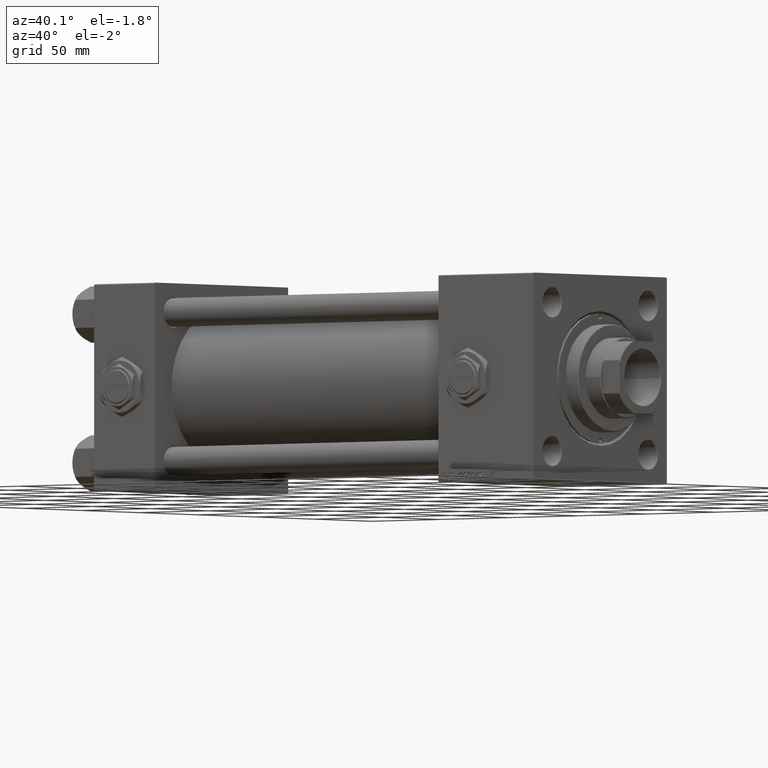
[diagram: clean part render]
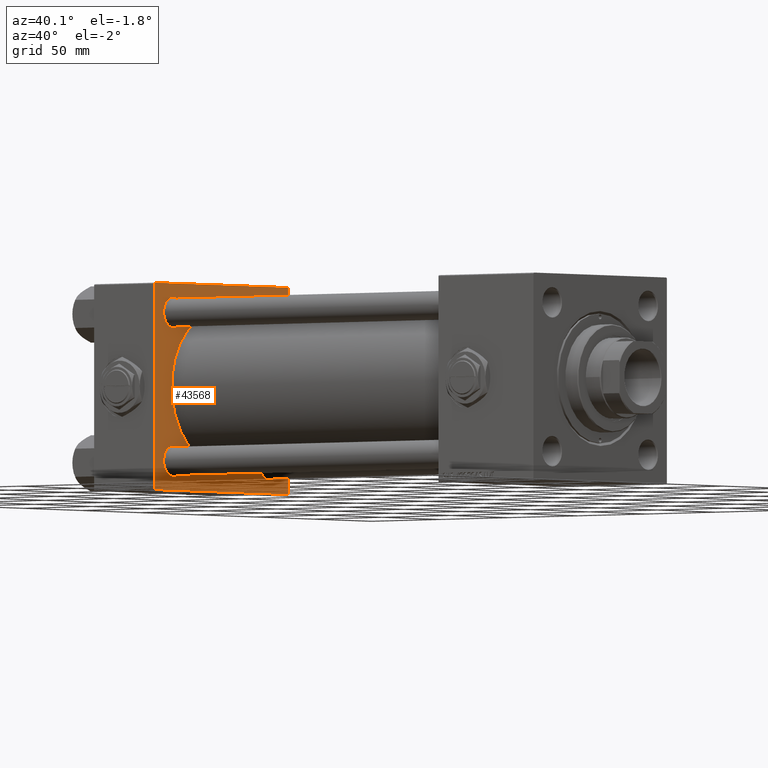
[diagram: same view with one face highlighted and labeled with its STEP entity id]
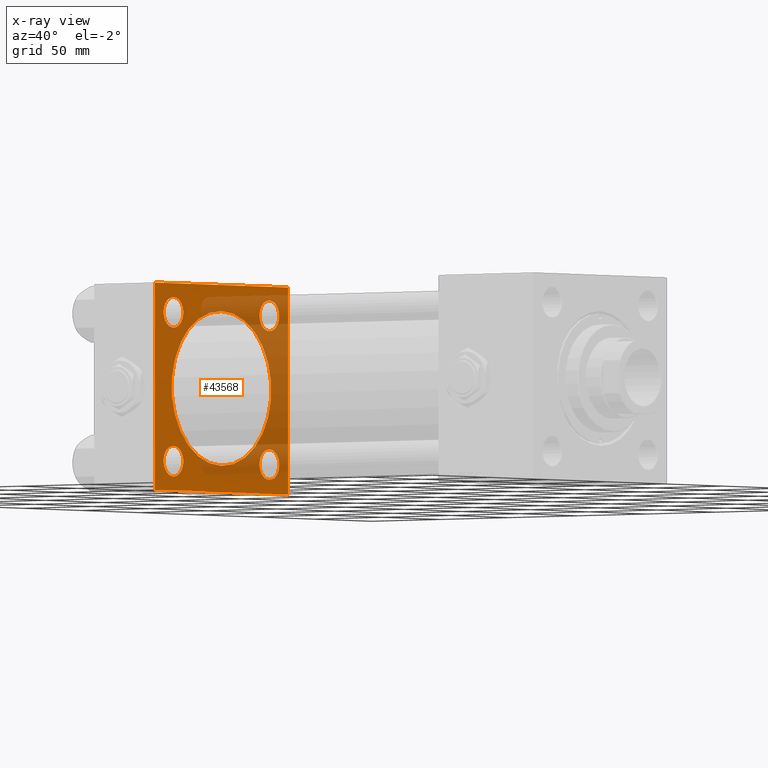
[diagram: x-ray of the same camera — body ghosted, the highlighted face saturated]
A machine part, auxiliary view. The second image highlights one B-rep face of the part: STEP entity #43568.
The next image is the same camera in x-ray: the body ghosted, the highlighted face saturated — about 40% of this face is hidden behind the body in this view.
In plain terms, the highlighted planar face has unit normal (-1, 0, 0).
Its self-contained STEP definition (entity closure, byte-faithful):
#1026 = CARTESIAN_POINT ( 'NONE',  ( 44.00000000000000000, -57.00000000000000711, -57.50000000000000711 ) ) ;
#1471 = DIRECTION ( 'NONE',  ( -1.000000000000000000, 0.000000000000000000, -0.000000000000000000 ) ) ;
#1589 = ORIENTED_EDGE ( 'NONE', *, *, #9591, .T. ) ;
#1885 = VECTOR ( 'NONE', #52728, 1000.000000000000114 ) ;
#1902 = EDGE_LOOP ( 'NONE', ( #37003, #5543 ) ) ;
#2224 = DIRECTION ( 'NONE',  ( -1.000000000000000000, 0.000000000000000000, -0.000000000000000000 ) ) ;
#2339 = CARTESIAN_POINT ( 'NONE',  ( 44.00000000000000000, 41.34999999999999432, -32.85000000000007958 ) ) ;
#2389 = LINE ( 'NONE', #18143, #19058 ) ;
#2866 = DIRECTION ( 'NONE',  ( 0.000000000000000000, 0.000000000000000000, 1.000000000000000000 ) ) ;
#3033 = EDGE_CURVE ( 'NONE', #34086, #39657, #11887, .T. ) ;
#3159 = FACE_BOUND ( 'NONE', #1902, .T. ) ;
#3241 = CARTESIAN_POINT ( 'NONE',  ( 44.00000000000000000, -41.34999999999998721, 41.35000000000000853 ) ) ;
#3274 = DIRECTION ( 'NONE',  ( 0.000000000000000000, 0.000000000000000000, 1.000000000000000000 ) ) ;
#3493 = EDGE_LOOP ( 'NONE', ( #8577, #50365 ) ) ;
#3628 = VERTEX_POINT ( 'NONE', #39375 ) ;
#3772 = CARTESIAN_POINT ( 'NONE',  ( 44.00000000000000000, 41.34999999999999432, 32.85000000000007958 ) ) ;
#4202 = FACE_BOUND ( 'NONE', #15897, .T. ) ;
#4848 = VERTEX_POINT ( 'NONE', #1026 ) ;
#5009 = ORIENTED_EDGE ( 'NONE', *, *, #47600, .T. ) ;
#5543 = ORIENTED_EDGE ( 'NONE', *, *, #23218, .T. ) ;
#6399 = AXIS2_PLACEMENT_3D ( 'NONE', #26458, #22197, #18447 ) ;
#7429 = FACE_BOUND ( 'NONE', #20040, .T. ) ;
#8209 = DIRECTION ( 'NONE',  ( -0.000000000000000000, 0.000000000000000000, 1.000000000000000000 ) ) ;
#8255 = CIRCLE ( 'NONE', #16787, 43.00000000000000000 ) ;
#8360 = VERTEX_POINT ( 'NONE', #50004 ) ;
#8577 = ORIENTED_EDGE ( 'NONE', *, *, #3033, .T. ) ;
#9138 = CARTESIAN_POINT ( 'NONE',  ( 44.00000000000000000, -57.50000000000000711, 57.00000000000000711 ) ) ;
#9591 = EDGE_CURVE ( 'NONE', #17645, #19429, #16385, .T. ) ;
#9860 = LINE ( 'NONE', #17618, #13540 ) ;
#9997 = CIRCLE ( 'NONE', #41552, 8.499999999999923617 ) ;
#10466 = CARTESIAN_POINT ( 'NONE',  ( 44.00000000000000000, -41.34999999999998721, -49.84999999999993747 ) ) ;
#11887 = CIRCLE ( 'NONE', #41726, 8.499999999999923617 ) ;
#12102 = VERTEX_POINT ( 'NONE', #15711 ) ;
#12589 = DIRECTION ( 'NONE',  ( 0.000000000000000000, 0.000000000000000000, 1.000000000000000000 ) ) ;
#12631 = CARTESIAN_POINT ( 'NONE',  ( 44.00000000000000000, -41.34999999999998721, 49.84999999999993747 ) ) ;
#12901 = DIRECTION ( 'NONE',  ( 0.000000000000000000, 0.000000000000000000, -1.000000000000000000 ) ) ;
#13050 = VERTEX_POINT ( 'NONE', #17036 ) ;
#13354 = CARTESIAN_POINT ( 'NONE',  ( 44.00000000000000000, 57.00000000000000711, 57.50000000000000711 ) ) ;
#13417 = EDGE_CURVE ( 'NONE', #26379, #23158, #44506, .T. ) ;
#13525 = EDGE_CURVE ( 'NONE', #12102, #13050, #19606, .T. ) ;
#13540 = VECTOR ( 'NONE', #13855, 1000.000000000000000 ) ;
#13729 = EDGE_LOOP ( 'NONE', ( #16298, #44739, #14153, #49296, #50276, #5009, #48156, #33855 ) ) ;
#13855 = DIRECTION ( 'NONE',  ( 0.000000000000000000, 0.000000000000000000, -1.000000000000000000 ) ) ;
#14042 = CIRCLE ( 'NONE', #6399, 8.499999999999923617 ) ;
#14153 = ORIENTED_EDGE ( 'NONE', *, *, #35117, .F. ) ;
#14279 = DIRECTION ( 'NONE',  ( 0.000000000000000000, 0.000000000000000000, 1.000000000000000000 ) ) ;
#15242 = VECTOR ( 'NONE', #41385, 1000.000000000000114 ) ;
#15692 = CARTESIAN_POINT ( 'NONE',  ( 44.00000000000000000, 0.000000000000000000, 0.000000000000000000 ) ) ;
#15711 = CARTESIAN_POINT ( 'NONE',  ( 44.00000000000000000, 57.00000000000002132, -57.49999999999999289 ) ) ;
#15897 = EDGE_LOOP ( 'NONE', ( #44394, #1589 ) ) ;
#16298 = ORIENTED_EDGE ( 'NONE', *, *, #16782, .F. ) ;
#16385 = CIRCLE ( 'NONE', #26627, 8.499999999999923617 ) ;
#16782 = EDGE_CURVE ( 'NONE', #12102, #4848, #2389, .T. ) ;
#16787 = AXIS2_PLACEMENT_3D ( 'NONE', #31171, #47473, #2866 ) ;
#16909 = DIRECTION ( 'NONE',  ( -1.000000000000000000, 0.000000000000000000, -0.000000000000000000 ) ) ;
#17036 = CARTESIAN_POINT ( 'NONE',  ( 44.00000000000000000, 57.49999999999999289, -57.00000000000000711 ) ) ;
#17618 = CARTESIAN_POINT ( 'NONE',  ( 44.00000000000000000, -57.50000000000000711, 57.49999999999999289 ) ) ;
#17645 = VERTEX_POINT ( 'NONE', #2339 ) ;
#17932 = ORIENTED_EDGE ( 'NONE', *, *, #13417, .T. ) ;
#18057 = CARTESIAN_POINT ( 'NONE',  ( 44.00000000000000000, -57.50000000000000711, 57.00000000000000711 ) ) ;
#18143 = CARTESIAN_POINT ( 'NONE',  ( 44.00000000000000000, 57.49999999999999289, -57.49999999999999289 ) ) ;
#18203 = AXIS2_PLACEMENT_3D ( 'NONE', #29445, #16909, #37717 ) ;
#18348 = VERTEX_POINT ( 'NONE', #21143 ) ;
#18425 = CIRCLE ( 'NONE', #43164, 8.499999999999923617 ) ;
#18447 = DIRECTION ( 'NONE',  ( 0.000000000000000000, 0.000000000000000000, 1.000000000000000000 ) ) ;
#19058 = VECTOR ( 'NONE', #26949, 1000.000000000000000 ) ;
#19346 = EDGE_CURVE ( 'NONE', #23158, #26379, #14042, .T. ) ;
#19429 = VERTEX_POINT ( 'NONE', #45120 ) ;
#19442 = DIRECTION ( 'NONE',  ( -1.000000000000000000, 0.000000000000000000, -0.000000000000000000 ) ) ;
#19577 = VECTOR ( 'NONE', #20984, 1000.000000000000000 ) ;
#19606 = LINE ( 'NONE', #31365, #1885 ) ;
#19937 = CARTESIAN_POINT ( 'NONE',  ( 44.00000000000000000, 41.34999999999999432, 49.84999999999993037 ) ) ;
#20040 = EDGE_LOOP ( 'NONE', ( #31347, #33086 ) ) ;
#20075 = DIRECTION ( 'NONE',  ( 0.000000000000000000, 0.000000000000000000, 1.000000000000000000 ) ) ;
#20839 = LINE ( 'NONE', #37112, #15242 ) ;
#20984 = DIRECTION ( 'NONE',  ( 0.000000000000000000, -1.000000000000000000, -1.206764157201257045E-16 ) ) ;
#21143 = CARTESIAN_POINT ( 'NONE',  ( 44.00000000000000000, -57.50000000000000711, -57.00000000000000711 ) ) ;
#21188 = LINE ( 'NONE', #49514, #24874 ) ;
#21517 = DIRECTION ( 'NONE',  ( 0.000000000000000000, 0.000000000000000000, 1.000000000000000000 ) ) ;
#22197 = DIRECTION ( 'NONE',  ( -1.000000000000000000, 0.000000000000000000, -0.000000000000000000 ) ) ;
#22507 = CARTESIAN_POINT ( 'NONE',  ( 44.00000000000000000, 41.34999999999999432, -41.35000000000000142 ) ) ;
#22527 = EDGE_LOOP ( 'NONE', ( #17932, #45988 ) ) ;
#22775 = DIRECTION ( 'NONE',  ( -1.000000000000000000, 0.000000000000000000, -0.000000000000000000 ) ) ;
#23158 = VERTEX_POINT ( 'NONE', #19937 ) ;
#23218 = EDGE_CURVE ( 'NONE', #25961, #3628, #18425, .T. ) ;
#23465 = VECTOR ( 'NONE', #49739, 1000.000000000000114 ) ;
#23531 = DIRECTION ( 'NONE',  ( 0.000000000000000000, 0.000000000000000000, 1.000000000000000000 ) ) ;
#24596 = DIRECTION ( 'NONE',  ( 0.000000000000000000, -0.7071067811865573427, 0.7071067811865376918 ) ) ;
#24867 = DIRECTION ( 'NONE',  ( -1.000000000000000000, 0.000000000000000000, -0.000000000000000000 ) ) ;
#24874 = VECTOR ( 'NONE', #12901, 1000.000000000000000 ) ;
#24990 = CARTESIAN_POINT ( 'NONE',  ( 44.00000000000000000, -57.00000000000003553, 57.49999999999999289 ) ) ;
#25295 = CARTESIAN_POINT ( 'NONE',  ( 43.99999999999998579, -2.602085213965210642E-15, 43.00000000000000000 ) ) ;
#25644 = LINE ( 'NONE', #49171, #51395 ) ;
#25719 = AXIS2_PLACEMENT_3D ( 'NONE', #32869, #31821, #20075 ) ;
#25961 = VERTEX_POINT ( 'NONE', #12631 ) ;
#26379 = VERTEX_POINT ( 'NONE', #3772 ) ;
#26406 = VERTEX_POINT ( 'NONE', #48642 ) ;
#26458 = CARTESIAN_POINT ( 'NONE',  ( 44.00000000000000000, 41.34999999999999432, 41.35000000000000142 ) ) ;
#26627 = AXIS2_PLACEMENT_3D ( 'NONE', #22507, #22775, #3274 ) ;
#26949 = DIRECTION ( 'NONE',  ( 0.000000000000000000, -1.000000000000000000, -1.206764157201257045E-16 ) ) ;
#27064 = CARTESIAN_POINT ( 'NONE',  ( 44.00000000000000000, -41.34999999999998721, -41.35000000000000853 ) ) ;
#27557 = EDGE_CURVE ( 'NONE', #8360, #51569, #8255, .T. ) ;
#27979 = FACE_OUTER_BOUND ( 'NONE', #13729, .T. ) ;
#29445 = CARTESIAN_POINT ( 'NONE',  ( 44.00000000000000000, 41.34999999999999432, -41.35000000000000142 ) ) ;
#30546 = VERTEX_POINT ( 'NONE', #18057 ) ;
#31171 = CARTESIAN_POINT ( 'NONE',  ( 43.99999999999998579, -2.602085213965210642E-15, 0.000000000000000000 ) ) ;
#31347 = ORIENTED_EDGE ( 'NONE', *, *, #35254, .F. ) ;
#31365 = CARTESIAN_POINT ( 'NONE',  ( 44.00000000000000000, 57.49999999999999289, -57.00000000000000711 ) ) ;
#31713 = FACE_BOUND ( 'NONE', #3493, .T. ) ;
#31821 = DIRECTION ( 'NONE',  ( 1.000000000000000000, -0.000000000000000000, 0.000000000000000000 ) ) ;
#31832 = EDGE_CURVE ( 'NONE', #18348, #4848, #20839, .T. ) ;
#31920 = EDGE_CURVE ( 'NONE', #30546, #18348, #9860, .T. ) ;
#32869 = CARTESIAN_POINT ( 'NONE',  ( 43.99999999999998579, -2.602085213965210642E-15, 0.000000000000000000 ) ) ;
#33086 = ORIENTED_EDGE ( 'NONE', *, *, #27557, .F. ) ;
#33422 = LINE ( 'NONE', #9138, #23465 ) ;
#33855 = ORIENTED_EDGE ( 'NONE', *, *, #31832, .T. ) ;
#34086 = VERTEX_POINT ( 'NONE', #10466 ) ;
#34295 = DIRECTION ( 'NONE',  ( -1.000000000000000000, 0.000000000000000000, -0.000000000000000000 ) ) ;
#34381 = VERTEX_POINT ( 'NONE', #13354 ) ;
#34646 = EDGE_CURVE ( 'NONE', #34381, #34750, #40487, .T. ) ;
#34750 = VERTEX_POINT ( 'NONE', #24990 ) ;
#35117 = EDGE_CURVE ( 'NONE', #26406, #13050, #21188, .T. ) ;
#35254 = EDGE_CURVE ( 'NONE', #51569, #8360, #49631, .T. ) ;
#35503 = CARTESIAN_POINT ( 'NONE',  ( 44.00000000000000000, 57.49999999999999289, 57.50000000000000711 ) ) ;
#36290 = AXIS2_PLACEMENT_3D ( 'NONE', #48656, #24867, #12589 ) ;
#37003 = ORIENTED_EDGE ( 'NONE', *, *, #52132, .T. ) ;
#37112 = CARTESIAN_POINT ( 'NONE',  ( 44.00000000000000000, -57.00000000000000711, -57.50000000000000711 ) ) ;
#37258 = CARTESIAN_POINT ( 'NONE',  ( 44.00000000000000000, -41.34999999999998721, 41.35000000000000853 ) ) ;
#37717 = DIRECTION ( 'NONE',  ( 0.000000000000000000, 0.000000000000000000, 1.000000000000000000 ) ) ;
#37981 = EDGE_CURVE ( 'NONE', #26406, #34381, #25644, .T. ) ;
#39375 = CARTESIAN_POINT ( 'NONE',  ( 44.00000000000000000, -41.34999999999998721, 32.85000000000008669 ) ) ;
#39657 = VERTEX_POINT ( 'NONE', #51938 ) ;
#39729 = FACE_BOUND ( 'NONE', #22527, .T. ) ;
#39890 = EDGE_CURVE ( 'NONE', #19429, #17645, #48909, .T. ) ;
#40487 = LINE ( 'NONE', #35503, #19577 ) ;
#40569 = CIRCLE ( 'NONE', #36290, 8.499999999999923617 ) ;
#41385 = DIRECTION ( 'NONE',  ( 0.000000000000000000, 0.7071067811865474617, -0.7071067811865474617 ) ) ;
#41552 = AXIS2_PLACEMENT_3D ( 'NONE', #3241, #44872, #23531 ) ;
#41726 = AXIS2_PLACEMENT_3D ( 'NONE', #27064, #2224, #51383 ) ;
#43164 = AXIS2_PLACEMENT_3D ( 'NONE', #37258, #1471, #21517 ) ;
#43568 = ADVANCED_FACE ( 'NONE', ( #31713, #4202, #3159, #39729, #7429, #27979 ), #48284, .F. ) ;
#44394 = ORIENTED_EDGE ( 'NONE', *, *, #39890, .T. ) ;
#44506 = CIRCLE ( 'NONE', #52236, 8.499999999999923617 ) ;
#44739 = ORIENTED_EDGE ( 'NONE', *, *, #13525, .T. ) ;
#44872 = DIRECTION ( 'NONE',  ( -1.000000000000000000, 0.000000000000000000, -0.000000000000000000 ) ) ;
#45120 = CARTESIAN_POINT ( 'NONE',  ( 44.00000000000000000, 41.34999999999999432, -49.84999999999993037 ) ) ;
#45988 = ORIENTED_EDGE ( 'NONE', *, *, #19346, .T. ) ;
#47473 = DIRECTION ( 'NONE',  ( 1.000000000000000000, -0.000000000000000000, 0.000000000000000000 ) ) ;
#47600 = EDGE_CURVE ( 'NONE', #34750, #30546, #33422, .T. ) ;
#48156 = ORIENTED_EDGE ( 'NONE', *, *, #31920, .T. ) ;
#48284 = PLANE ( 'NONE',  #49823 ) ;
#48478 = EDGE_CURVE ( 'NONE', #39657, #34086, #40569, .T. ) ;
#48642 = CARTESIAN_POINT ( 'NONE',  ( 44.00000000000000000, 57.49999999999999289, 57.00000000000003553 ) ) ;
#48656 = CARTESIAN_POINT ( 'NONE',  ( 44.00000000000000000, -41.34999999999998721, -41.35000000000000853 ) ) ;
#48909 = CIRCLE ( 'NONE', #18203, 8.499999999999923617 ) ;
#49171 = CARTESIAN_POINT ( 'NONE',  ( 44.00000000000000000, 57.00000000000000711, 57.50000000000000711 ) ) ;
#49296 = ORIENTED_EDGE ( 'NONE', *, *, #37981, .T. ) ;
#49514 = CARTESIAN_POINT ( 'NONE',  ( 44.00000000000000000, 57.49999999999999289, 57.50000000000000711 ) ) ;
#49631 = CIRCLE ( 'NONE', #25719, 43.00000000000000000 ) ;
#49739 = DIRECTION ( 'NONE',  ( -0.000000000000000000, -0.7071067811865376918, -0.7071067811865573427 ) ) ;
#49823 = AXIS2_PLACEMENT_3D ( 'NONE', #15692, #19442, #8209 ) ;
#50004 = CARTESIAN_POINT ( 'NONE',  ( 43.99999999999998579, 2.663896022368408223E-15, -43.00000000000000000 ) ) ;
#50276 = ORIENTED_EDGE ( 'NONE', *, *, #34646, .T. ) ;
#50365 = ORIENTED_EDGE ( 'NONE', *, *, #48478, .T. ) ;
#51383 = DIRECTION ( 'NONE',  ( 0.000000000000000000, 0.000000000000000000, 1.000000000000000000 ) ) ;
#51395 = VECTOR ( 'NONE', #24596, 1000.000000000000114 ) ;
#51569 = VERTEX_POINT ( 'NONE', #25295 ) ;
#51684 = CARTESIAN_POINT ( 'NONE',  ( 44.00000000000000000, 41.34999999999999432, 41.35000000000000142 ) ) ;
#51938 = CARTESIAN_POINT ( 'NONE',  ( 44.00000000000000000, -41.34999999999998721, -32.85000000000008669 ) ) ;
#52132 = EDGE_CURVE ( 'NONE', #3628, #25961, #9997, .T. ) ;
#52236 = AXIS2_PLACEMENT_3D ( 'NONE', #51684, #34295, #14279 ) ;
#52728 = DIRECTION ( 'NONE',  ( -0.000000000000000000, 0.7071067811865376918, 0.7071067811865573427 ) ) ;